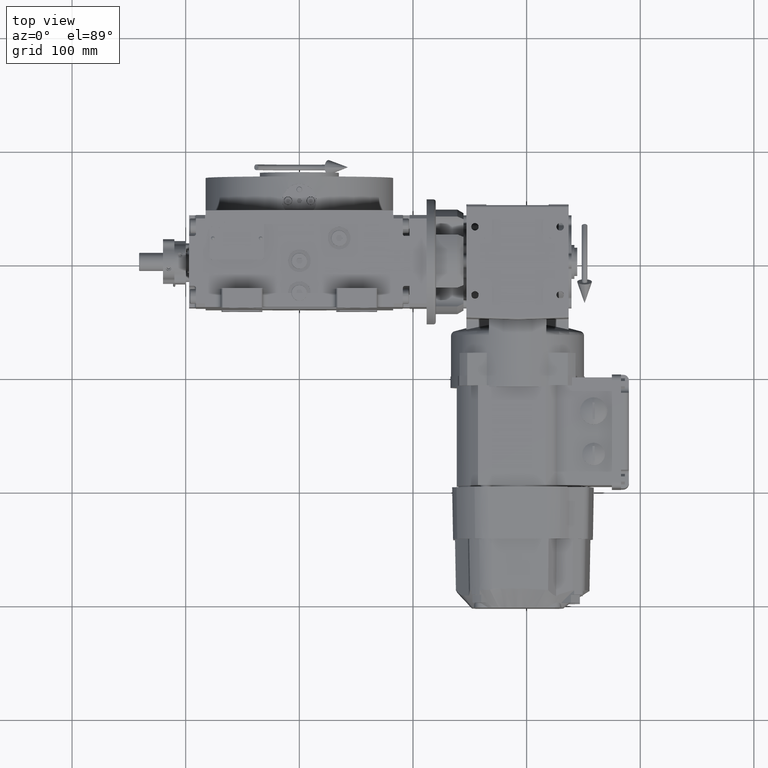
[diagram: clean part render]
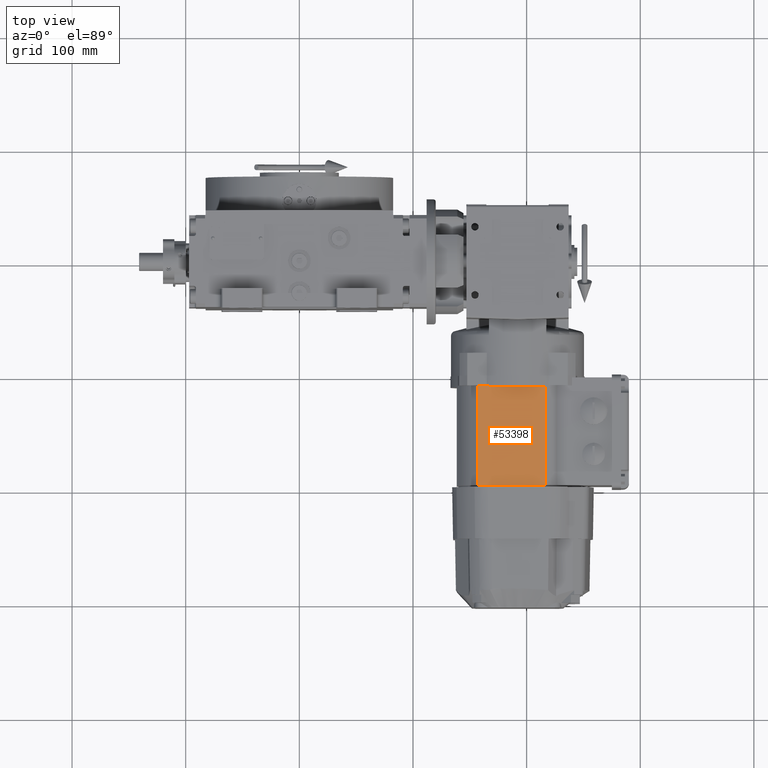
[diagram: same view with one face highlighted and labeled with its STEP entity id]
A machine part, top view. The second image highlights one B-rep face of the part: STEP entity #53398.
In plain terms, the highlighted planar face has unit normal (0, -0, 1).
Its self-contained STEP definition (entity closure, byte-faithful):
#2375 = VECTOR ( 'NONE', #78162, 1000.000000000000000 ) ;
#5819 = VERTEX_POINT ( 'NONE', #12651 ) ;
#7249 = EDGE_CURVE ( 'NONE', #77889, #5819, #11588, .T. ) ;
#8343 = LINE ( 'NONE', #40722, #86692 ) ;
#8409 = ORIENTED_EDGE ( 'NONE', *, *, #23481, .F. ) ;
#11588 = LINE ( 'NONE', #86483, #103121 ) ;
#12651 = CARTESIAN_POINT ( 'NONE',  ( 110.5000000000005542, 24.87468592766509090, -30.50000000000112266 ) ) ;
#16895 = DIRECTION ( 'NONE',  ( 6.722570487708227142E-15, -6.980310676003316586E-15, -1.000000000000000000 ) ) ;
#18992 = EDGE_CURVE ( 'NONE', #39875, #47744, #86085, .T. ) ;
#19231 = DIRECTION ( 'NONE',  ( -6.123233995736523215E-17, -1.000000000000000000, -3.469446951953669409E-16 ) ) ;
#23481 = EDGE_CURVE ( 'NONE', #84129, #77889, #73938, .T. ) ;
#24036 = ORIENTED_EDGE ( 'NONE', *, *, #7249, .F. ) ;
#25067 = CARTESIAN_POINT ( 'NONE',  ( 109.1400000000005548, 34.74330623606699930, -30.50000000000166622 ) ) ;
#33554 = ORIENTED_EDGE ( 'NONE', *, *, #33950, .T. ) ;
#33950 = EDGE_CURVE ( 'NONE', #84129, #47744, #85205, .T. ) ;
#36765 = EDGE_CURVE ( 'NONE', #5819, #76153, #8343, .T. ) ;
#37500 = CARTESIAN_POINT ( 'NONE',  ( 110.5000000000005542, -24.87468592766578368, -30.50000000000112266 ) ) ;
#38292 = LINE ( 'NONE', #70695, #2375 ) ;
#39875 = VERTEX_POINT ( 'NONE', #80912 ) ;
#40722 = CARTESIAN_POINT ( 'NONE',  ( 110.5000000000005542, -1.942890293094023946E-13, -30.50000000000112266 ) ) ;
#43126 = CARTESIAN_POINT ( 'NONE',  ( 109.1400000000005548, 14.74330623606700996, -30.50000000000166622 ) ) ;
#45512 = VECTOR ( 'NONE', #85731, 1000.000000000000000 ) ;
#47744 = VERTEX_POINT ( 'NONE', #92109 ) ;
#49292 = EDGE_LOOP ( 'NONE', ( #76472, #80456, #60096, #24036, #8409, #33554 ) ) ;
#50300 = PLANE ( 'NONE',  #78937 ) ;
#52466 = DIRECTION ( 'NONE',  ( 1.000000000000000000, 2.142138711528200832E-47, -6.661338147750980263E-15 ) ) ;
#52692 = EDGE_CURVE ( 'NONE', #76153, #39875, #38292, .T. ) ;
#53398 = ADVANCED_FACE ( 'NONE', ( #90203 ), #50300, .T. ) ;
#54137 = CARTESIAN_POINT ( 'NONE',  ( 109.1400000000005548, 24.87468592766520104, -30.50000000000166622 ) ) ;
#60096 = ORIENTED_EDGE ( 'NONE', *, *, #36765, .F. ) ;
#67299 = DIRECTION ( 'NONE',  ( -4.649820978921347967E-29, -1.000000000000000000, 6.980310676003316586E-15 ) ) ;
#70695 = CARTESIAN_POINT ( 'NONE',  ( 198.5000000000000000, -24.87468592766589737, -30.50000000000222045 ) ) ;
#72089 = DIRECTION ( 'NONE',  ( -4.597738260228327940E-29, -1.000000000000000000, 6.902124105170536224E-15 ) ) ;
#73938 = LINE ( 'NONE', #43126, #81377 ) ;
#76153 = VERTEX_POINT ( 'NONE', #37500 ) ;
#76472 = ORIENTED_EDGE ( 'NONE', *, *, #18992, .F. ) ;
#77889 = VERTEX_POINT ( 'NONE', #54137 ) ;
#78162 = DIRECTION ( 'NONE',  ( 1.000000000000000000, 2.142138711528200832E-47, -6.661338147750980263E-15 ) ) ;
#78638 = CARTESIAN_POINT ( 'NONE',  ( 197.0000000000000000, -1.942890293094023946E-13, -30.50000000000222045 ) ) ;
#78937 = AXIS2_PLACEMENT_3D ( 'NONE', #83258, #16895, #67299 ) ;
#80456 = ORIENTED_EDGE ( 'NONE', *, *, #52692, .F. ) ;
#80912 = CARTESIAN_POINT ( 'NONE',  ( 197.0000000000000000, -24.87468592766589737, -30.50000000000222045 ) ) ;
#81377 = VECTOR ( 'NONE', #19231, 1000.000000000000000 ) ;
#83258 = CARTESIAN_POINT ( 'NONE',  ( 110.5000000000005542, -1.942890293094023946E-13, -30.50000000000112266 ) ) ;
#84129 = VERTEX_POINT ( 'NONE', #25067 ) ;
#85205 = LINE ( 'NONE', #101138, #45512 ) ;
#85731 = DIRECTION ( 'NONE',  ( 1.000000000000000000, -6.123233995736769734E-17, -6.661338147750980263E-15 ) ) ;
#86085 = LINE ( 'NONE', #78638, #87789 ) ;
#86483 = CARTESIAN_POINT ( 'NONE',  ( 198.5000000000000000, 24.87468592766520104, -30.50000000000222045 ) ) ;
#86692 = VECTOR ( 'NONE', #72089, 1000.000000000000000 ) ;
#87789 = VECTOR ( 'NONE', #103583, 1000.000000000000000 ) ;
#90203 = FACE_OUTER_BOUND ( 'NONE', #49292, .T. ) ;
#92109 = CARTESIAN_POINT ( 'NONE',  ( 197.0000000000000000, 34.74330623606699930, -30.50000000000222045 ) ) ;
#101138 = CARTESIAN_POINT ( 'NONE',  ( 86.77932022500264964, 34.74330623606699930, -30.50000000000166622 ) ) ;
#103121 = VECTOR ( 'NONE', #52466, 1000.000000000000000 ) ;
#103583 = DIRECTION ( 'NONE',  ( 4.649820978921347967E-29, 1.000000000000000000, -6.980310676003316586E-15 ) ) ;